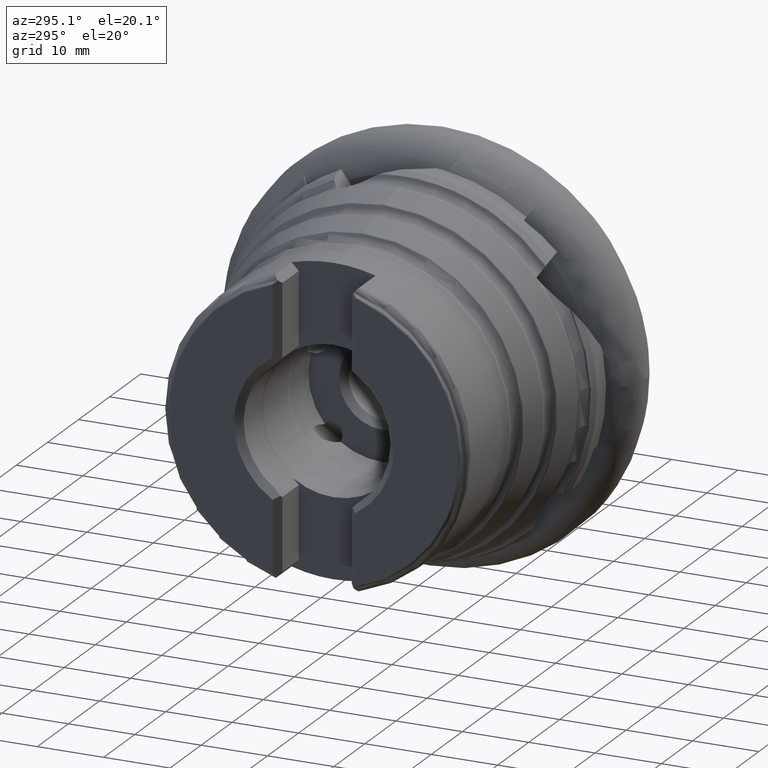
[diagram: clean part render]
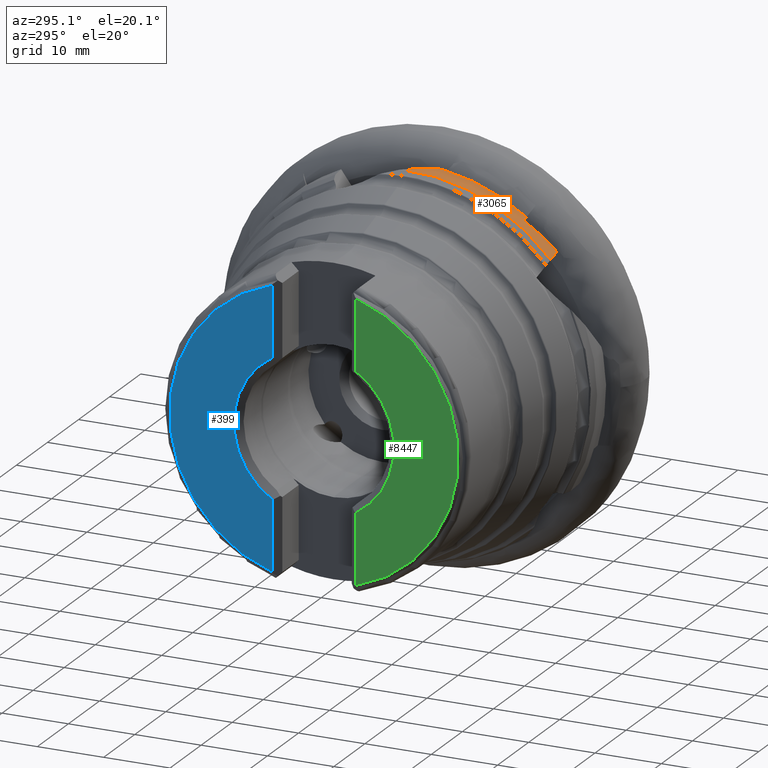
[diagram: same view with three faces highlighted in distinct colors, each labeled with its STEP entity id]
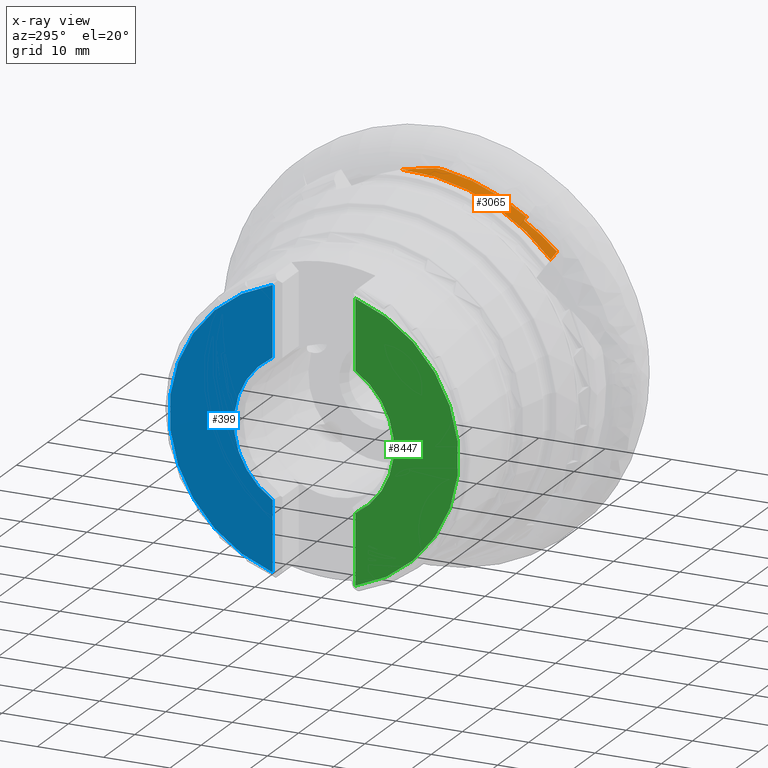
[diagram: x-ray of the same camera — body ghosted, the three highlighted faces saturated]
A machine part, auxiliary view with three faces highlighted in distinct colors.
The next image is the same camera in x-ray (body ghosted, the three faces saturated) — at least one of them is partly hidden behind the body in this view.
Their STEP definitions:

[orange] entity #3065 — the highlighted cylindrical surface (partial cylindrical patch) has radius 28.3 mm, axis along (1, -0, -0).
#5 = EDGE_LOOP ( 'NONE', ( #7452, #4567, #2580, #2568, #2128, #1456, #468 ) ) ;
#65 = EDGE_CURVE ( 'NONE', #8961, #3126, #7473, .T. ) ;
#251 = AXIS2_PLACEMENT_3D ( 'NONE', #6031, #4601, #3244 ) ;
#468 = ORIENTED_EDGE ( 'NONE', *, *, #65, .F. ) ;
#830 = AXIS2_PLACEMENT_3D ( 'NONE', #7430, #6723, #3947 ) ;
#899 = CARTESIAN_POINT ( 'NONE',  ( -10.09999999999999100, -3.750121680122614700, 28.05042936185245800 ) ) ;
#1244 = B_SPLINE_CURVE_WITH_KNOTS ( 'NONE', 3,
 ( #4107, #7675, #1348, #2754, #6420, #899 ),
 .UNSPECIFIED., .F., .F.,
 ( 4, 2, 4 ),
 ( 0.004349432963416596800, 0.004862400796637180100, 0.005375368629857763300 ),
 .UNSPECIFIED. ) ;
#1348 = CARTESIAN_POINT ( 'NONE',  ( -10.20462185407755000, -3.085377230602033700, 28.13181020584272200 ) ) ;
#1380 = CARTESIAN_POINT ( 'NONE',  ( -12.14301125521765100, -0.05080109255604209300, 28.33221288358772600 ) ) ;
#1411 = CARTESIAN_POINT ( 'NONE',  ( -10.38090222836437900, -21.03710874407310200, 18.92960791168276600 ) ) ;
#1456 = ORIENTED_EDGE ( 'NONE', *, *, #6855, .T. ) ;
#1557 = EDGE_CURVE ( 'NONE', #2565, #5980, #8249, .T. ) ;
#1942 = CARTESIAN_POINT ( 'NONE',  ( -10.38090222836437900, -21.03710874407310200, 18.92960791168276600 ) ) ;
#1962 = CARTESIAN_POINT ( 'NONE',  ( -12.99999999999999800, -21.28733053869701000, 18.64777623568713200 ) ) ;
#2030 = CARTESIAN_POINT ( 'NONE',  ( -10.86250496123011400, -16.39037683216616200, 23.07050972065726000 ) ) ;
#2128 = ORIENTED_EDGE ( 'NONE', *, *, #7425, .T. ) ;
#2150 = CARTESIAN_POINT ( 'NONE',  ( -11.24377545431678400, -16.43400197083565900, 23.03939190218720500 ) ) ;
#2469 = CARTESIAN_POINT ( 'NONE',  ( -11.24377545431678400, -16.43400197083565900, 23.03939190218720500 ) ) ;
#2565 = VERTEX_POINT ( 'NONE', #2469 ) ;
#2568 = ORIENTED_EDGE ( 'NONE', *, *, #6300, .F. ) ;
#2580 = ORIENTED_EDGE ( 'NONE', *, *, #3815, .F. ) ;
#2685 = FACE_OUTER_BOUND ( 'NONE', #5, .T. ) ;
#2754 = CARTESIAN_POINT ( 'NONE',  ( -10.15914175169515100, -3.419588743704182300, 28.09314348620684100 ) ) ;
#2765 = CARTESIAN_POINT ( 'NONE',  ( -10.09999999999999800, -16.30286228860670400, 23.13237301270074300 ) ) ;
#2830 = CARTESIAN_POINT ( 'NONE',  ( -10.23525451434899800, -2.747206377128795600, 28.16634262948371900 ) ) ;
#3060 = AXIS2_PLACEMENT_3D ( 'NONE', #8354, #3428, #4085 ) ;
#3065 = ADVANCED_FACE ( 'NONE', ( #2685 ), #5868, .T. ) ;
#3126 = VERTEX_POINT ( 'NONE', #1962 ) ;
#3244 = DIRECTION ( 'NONE',  ( 0.0000000000000000000, 0.0000000000000000000, -1.000000000000000000 ) ) ;
#3428 = DIRECTION ( 'NONE',  ( 1.000000000000000000, -0.0000000000000000000, -0.0000000000000000000 ) ) ;
#3475 = CARTESIAN_POINT ( 'NONE',  ( -10.95354942108211000, -18.11526217488523500, 21.84014872666680800 ) ) ;
#3507 = CARTESIAN_POINT ( 'NONE',  ( -10.66477743534509100, -19.65575299495921200, 20.46475492814183300 ) ) ;
#3580 = CARTESIAN_POINT ( 'NONE',  ( -12.99999999999999600, 1.299390108336942400, 28.27015361377359100 ) ) ;
#3678 = CARTESIAN_POINT ( 'NONE',  ( -12.12825200801737700, -21.20454944293071300, 18.74227482499133000 ) ) ;
#3815 = EDGE_CURVE ( 'NONE', #5206, #5980, #6507, .T. ) ;
#3927 = CARTESIAN_POINT ( 'NONE',  ( -10.38090222836437900, -21.03710874407310200, 18.92960791168276600 ) ) ;
#3947 = DIRECTION ( 'NONE',  ( 0.0000000000000000000, 0.0000000000000000000, -1.000000000000000000 ) ) ;
#4085 = DIRECTION ( 'NONE',  ( 0.0000000000000000000, 0.0000000000000000000, -1.000000000000000000 ) ) ;
#4107 = CARTESIAN_POINT ( 'NONE',  ( -10.23525451434899800, -2.747206377128795600, 28.16634262948371900 ) ) ;
#4567 = ORIENTED_EDGE ( 'NONE', *, *, #1557, .T. ) ;
#4601 = DIRECTION ( 'NONE',  ( 1.000000000000000000, -0.0000000000000000000, -0.0000000000000000000 ) ) ;
#5104 = CARTESIAN_POINT ( 'NONE',  ( -10.09999999999999100, -3.750121680122614700, 28.05042936185245800 ) ) ;
#5206 = VERTEX_POINT ( 'NONE', #5104 ) ;
#5470 = CARTESIAN_POINT ( 'NONE',  ( -10.48124545124958500, -16.34666348721116000, 23.10150350750417700 ) ) ;
#5476 =( BOUNDED_CURVE ( )  B_SPLINE_CURVE ( 3, ( #2150, #3475, #3507, #1411 ),
 .UNSPECIFIED., .F., .F. ) 
 B_SPLINE_CURVE_WITH_KNOTS ( ( 4, 4 ),
 ( 4.703667035812809900, 4.922151217204736400 ),
 .UNSPECIFIED. ) 
 CURVE ( )  GEOMETRIC_REPRESENTATION_ITEM ( )  RATIONAL_B_SPLINE_CURVE ( ( 1.000000000000000000, 0.9960260096446420500, 0.9960260096446420500, 1.000000000000000000 ) ) 
 REPRESENTATION_ITEM ( '' )  );
#5868 = CYLINDRICAL_SURFACE ( 'NONE', #251, 28.30000000000000100 ) ;
#5980 = VERTEX_POINT ( 'NONE', #6242 ) ;
#6031 = CARTESIAN_POINT ( 'NONE',  ( 0.0000000000000000000, 0.0000000000000000000, 0.0000000000000000000 ) ) ;
#6242 = CARTESIAN_POINT ( 'NONE',  ( -10.09999999999999800, -16.30286228860670400, 23.13237301270074300 ) ) ;
#6300 = EDGE_CURVE ( 'NONE', #6791, #5206, #1244, .T. ) ;
#6341 = VERTEX_POINT ( 'NONE', #3580 ) ;
#6420 = CARTESIAN_POINT ( 'NONE',  ( -10.13169038464091000, -3.585430710667140400, 28.07244724853461900 ) ) ;
#6507 = CIRCLE ( 'NONE', #830, 28.30000000000000100 ) ;
#6723 = DIRECTION ( 'NONE',  ( 1.000000000000000000, -0.0000000000000000000, -0.0000000000000000000 ) ) ;
#6791 = VERTEX_POINT ( 'NONE', #6821 ) ;
#6821 = CARTESIAN_POINT ( 'NONE',  ( -10.23525451434899800, -2.747206377128795600, 28.16634262948371900 ) ) ;
#6855 = EDGE_CURVE ( 'NONE', #6341, #3126, #7796, .T. ) ;
#7336 =( BOUNDED_CURVE ( )  B_SPLINE_CURVE ( 3, ( #2830, #7676, #1380, #8308 ),
 .UNSPECIFIED., .F., .F. ) 
 B_SPLINE_CURVE_WITH_KNOTS ( ( 4, 4 ),
 ( 2.267537012294808200, 2.410695548230669800 ),
 .UNSPECIFIED. ) 
 CURVE ( )  GEOMETRIC_REPRESENTATION_ITEM ( )  RATIONAL_B_SPLINE_CURVE ( ( 1.000000000000000000, 0.9982928652076132900, 0.9982928652076132900, 1.000000000000000000 ) ) 
 REPRESENTATION_ITEM ( '' )  );
#7425 = EDGE_CURVE ( 'NONE', #6791, #6341, #7336, .T. ) ;
#7430 = CARTESIAN_POINT ( 'NONE',  ( -10.09999999999999800, 0.0000000000000000000, 0.0000000000000000000 ) ) ;
#7452 = ORIENTED_EDGE ( 'NONE', *, *, #8607, .F. ) ;
#7473 =( BOUNDED_CURVE ( )  B_SPLINE_CURVE ( 3, ( #3927, #8763, #3678, #7859 ),
 .UNSPECIFIED., .F., .F. ) 
 B_SPLINE_CURVE_WITH_KNOTS ( ( 4, 4 ),
 ( 1.780558563614943500, 1.793876047101828500 ),
 .UNSPECIFIED. ) 
 CURVE ( )  GEOMETRIC_REPRESENTATION_ITEM ( )  RATIONAL_B_SPLINE_CURVE ( ( 1.000000000000000000, 0.9999852204407405600, 0.9999852204407405600, 1.000000000000000000 ) ) 
 REPRESENTATION_ITEM ( '' )  );
#7556 = CARTESIAN_POINT ( 'NONE',  ( -11.24377545431678400, -16.43400197083565900, 23.03939190218720500 ) ) ;
#7675 = CARTESIAN_POINT ( 'NONE',  ( -10.22265747837393800, -2.917009271668783700, 28.14978089121062500 ) ) ;
#7676 = CARTESIAN_POINT ( 'NONE',  ( -11.21985347189651500, -1.401973220661679300, 28.29755004802511900 ) ) ;
#7796 = CIRCLE ( 'NONE', #3060, 28.30000000000000100 ) ;
#7859 = CARTESIAN_POINT ( 'NONE',  ( -12.99999999999999800, -21.28733053869701000, 18.64777623568713200 ) ) ;
#8249 =( BOUNDED_CURVE ( )  B_SPLINE_CURVE ( 3, ( #7556, #2030, #5470, #2765 ),
 .UNSPECIFIED., .F., .T. ) 
 B_SPLINE_CURVE_WITH_KNOTS ( ( 4, 4 ),
 ( 4.721110924956569500, 4.726791423843071300 ),
 .UNSPECIFIED. ) 
 CURVE ( )  GEOMETRIC_REPRESENTATION_ITEM ( )  RATIONAL_B_SPLINE_CURVE ( ( 1.000000000000000000, 0.9999973109961743900, 0.9999973109961743900, 1.000000000000000000 ) ) 
 REPRESENTATION_ITEM ( '' )  );
#8308 = CARTESIAN_POINT ( 'NONE',  ( -12.99999999999999600, 1.299390108336942400, 28.27015361377359100 ) ) ;
#8354 = CARTESIAN_POINT ( 'NONE',  ( -13.00000000000000000, 0.0000000000000000000, 0.0000000000000000000 ) ) ;
#8607 = EDGE_CURVE ( 'NONE', #2565, #8961, #5476, .T. ) ;
#8763 = CARTESIAN_POINT ( 'NONE',  ( -11.25520651424457000, -21.12114094531524000, 18.83622010545971300 ) ) ;
#8961 = VERTEX_POINT ( 'NONE', #1942 ) ;

[blue] entity #399 — the highlighted planar face has unit normal (-1, 0, 0).
#37 = VERTEX_POINT ( 'NONE', #5295 ) ;
#94 = LINE ( 'NONE', #3736, #6731 ) ;
#399 = ADVANCED_FACE ( 'NONE', ( #5896 ), #4945, .T. ) ;
#745 = CARTESIAN_POINT ( 'NONE',  ( -43.70000000000000300, 6.230000000000006600, 20.88040229497505600 ) ) ;
#797 = DIRECTION ( 'NONE',  ( -1.000000000000000000, 0.0000000000000000000, 0.0000000000000000000 ) ) ;
#975 = CIRCLE ( 'NONE', #5330, 12.07500000000000500 ) ;
#1712 = VERTEX_POINT ( 'NONE', #745 ) ;
#1780 = DIRECTION ( 'NONE',  ( 0.0000000000000000000, -0.0000000000000000000, 1.000000000000000000 ) ) ;
#1839 = DIRECTION ( 'NONE',  ( 1.000000000000000000, -0.0000000000000000000, -0.0000000000000000000 ) ) ;
#2618 = CARTESIAN_POINT ( 'NONE',  ( -43.70000000000000300, 0.0000000000000000000, 0.0000000000000000000 ) ) ;
#2733 = EDGE_CURVE ( 'NONE', #3110, #1712, #8675, .T. ) ;
#2943 = CARTESIAN_POINT ( 'NONE',  ( -43.70000000000000300, 21.78999999999999200, 0.0000000000000000000 ) ) ;
#3000 = ORIENTED_EDGE ( 'NONE', *, *, #6653, .T. ) ;
#3110 = VERTEX_POINT ( 'NONE', #6835 ) ;
#3469 = EDGE_CURVE ( 'NONE', #37, #1712, #94, .T. ) ;
#3505 = VERTEX_POINT ( 'NONE', #5998 ) ;
#3736 = CARTESIAN_POINT ( 'NONE',  ( -43.70000000000000300, 6.230000000000006600, 21.00735931288070900 ) ) ;
#4186 = ORIENTED_EDGE ( 'NONE', *, *, #5317, .T. ) ;
#4448 = AXIS2_PLACEMENT_3D ( 'NONE', #2618, #4691, #8917 ) ;
#4575 = LINE ( 'NONE', #4804, #5880 ) ;
#4596 = AXIS2_PLACEMENT_3D ( 'NONE', #2943, #797, #8423 ) ;
#4691 = DIRECTION ( 'NONE',  ( 1.000000000000000000, -0.0000000000000000000, -0.0000000000000000000 ) ) ;
#4804 = CARTESIAN_POINT ( 'NONE',  ( -43.70000000000000300, 6.229999999999932900, -10.88359889926126400 ) ) ;
#4945 = PLANE ( 'NONE',  #4596 ) ;
#5295 = CARTESIAN_POINT ( 'NONE',  ( -43.70000000000000300, 6.230000000000006600, 10.34372877641327200 ) ) ;
#5317 = EDGE_CURVE ( 'NONE', #3110, #3505, #4575, .T. ) ;
#5330 = AXIS2_PLACEMENT_3D ( 'NONE', #7403, #1839, #7295 ) ;
#5552 = ORIENTED_EDGE ( 'NONE', *, *, #3469, .T. ) ;
#5880 = VECTOR ( 'NONE', #7522, 1000.000000000000000 ) ;
#5896 = FACE_OUTER_BOUND ( 'NONE', #8954, .T. ) ;
#5961 = ORIENTED_EDGE ( 'NONE', *, *, #2733, .F. ) ;
#5998 = CARTESIAN_POINT ( 'NONE',  ( -43.70000000000000300, 6.229999999999938300, -10.34372877641331500 ) ) ;
#6653 = EDGE_CURVE ( 'NONE', #3505, #37, #975, .T. ) ;
#6731 = VECTOR ( 'NONE', #1780, 1000.000000000000000 ) ;
#6835 = CARTESIAN_POINT ( 'NONE',  ( -43.70000000000000300, 6.229999999999863600, -20.88040229497509900 ) ) ;
#7295 = DIRECTION ( 'NONE',  ( 0.0000000000000000000, 0.0000000000000000000, -1.000000000000000000 ) ) ;
#7403 = CARTESIAN_POINT ( 'NONE',  ( -43.70000000000000300, 0.0000000000000000000, 0.0000000000000000000 ) ) ;
#7522 = DIRECTION ( 'NONE',  ( 0.0000000000000000000, 6.982962677686266700E-015, 1.000000000000000000 ) ) ;
#8423 = DIRECTION ( 'NONE',  ( 0.0000000000000000000, 0.0000000000000000000, 1.000000000000000000 ) ) ;
#8675 = CIRCLE ( 'NONE', #4448, 21.78999999999999200 ) ;
#8917 = DIRECTION ( 'NONE',  ( 0.0000000000000000000, 0.0000000000000000000, -1.000000000000000000 ) ) ;
#8954 = EDGE_LOOP ( 'NONE', ( #5961, #4186, #3000, #5552 ) ) ;

[green] entity #8447 — the highlighted planar face has unit normal (-1, 0, 0).
#6 = VECTOR ( 'NONE', #3376, 1000.000000000000000 ) ;
#124 = EDGE_CURVE ( 'NONE', #5701, #3694, #3468, .T. ) ;
#667 = CARTESIAN_POINT ( 'NONE',  ( -43.70000000000000300, -6.230000000000156700, -21.00735931288066600 ) ) ;
#959 = EDGE_CURVE ( 'NONE', #5701, #2116, #3343, .T. ) ;
#1000 = AXIS2_PLACEMENT_3D ( 'NONE', #8478, #7873, #5124 ) ;
#1250 = EDGE_CURVE ( 'NONE', #2536, #2116, #7488, .T. ) ;
#1614 = ORIENTED_EDGE ( 'NONE', *, *, #959, .F. ) ;
#1818 = CARTESIAN_POINT ( 'NONE',  ( -43.70000000000000300, -6.230000000000006600, 10.88359889926122100 ) ) ;
#2068 = ORIENTED_EDGE ( 'NONE', *, *, #124, .T. ) ;
#2116 = VERTEX_POINT ( 'NONE', #7005 ) ;
#2536 = VERTEX_POINT ( 'NONE', #5820 ) ;
#2706 = VECTOR ( 'NONE', #7412, 1000.000000000000000 ) ;
#2710 = CARTESIAN_POINT ( 'NONE',  ( -43.70000000000000300, -6.230000000000006600, 20.88040229497505600 ) ) ;
#2889 = ORIENTED_EDGE ( 'NONE', *, *, #1250, .T. ) ;
#3343 = CIRCLE ( 'NONE', #1000, 21.78999999999999200 ) ;
#3376 = DIRECTION ( 'NONE',  ( 0.0000000000000000000, -6.982962677686266700E-015, -1.000000000000000000 ) ) ;
#3468 = LINE ( 'NONE', #1818, #2706 ) ;
#3694 = VERTEX_POINT ( 'NONE', #4087 ) ;
#3937 = AXIS2_PLACEMENT_3D ( 'NONE', #6187, #8219, #7515 ) ;
#4087 = CARTESIAN_POINT ( 'NONE',  ( -43.70000000000000300, -6.230000000000005800, 10.34372877641327200 ) ) ;
#4250 = ORIENTED_EDGE ( 'NONE', *, *, #7779, .T. ) ;
#4737 = PLANE ( 'NONE',  #3937 ) ;
#5124 = DIRECTION ( 'NONE',  ( 0.0000000000000000000, 0.0000000000000000000, -1.000000000000000000 ) ) ;
#5294 = FACE_OUTER_BOUND ( 'NONE', #8712, .T. ) ;
#5344 = DIRECTION ( 'NONE',  ( 0.0000000000000000000, 0.0000000000000000000, -1.000000000000000000 ) ) ;
#5701 = VERTEX_POINT ( 'NONE', #2710 ) ;
#5820 = CARTESIAN_POINT ( 'NONE',  ( -43.70000000000000300, -6.230000000000082100, -10.34372877641322800 ) ) ;
#6187 = CARTESIAN_POINT ( 'NONE',  ( -43.70000000000000300, 21.78999999999999200, 0.0000000000000000000 ) ) ;
#6741 = AXIS2_PLACEMENT_3D ( 'NONE', #8728, #8782, #5344 ) ;
#7005 = CARTESIAN_POINT ( 'NONE',  ( -43.70000000000000300, -6.230000000000155000, -20.88040229497501000 ) ) ;
#7412 = DIRECTION ( 'NONE',  ( 0.0000000000000000000, 0.0000000000000000000, -1.000000000000000000 ) ) ;
#7488 = LINE ( 'NONE', #667, #6 ) ;
#7515 = DIRECTION ( 'NONE',  ( 0.0000000000000000000, 0.0000000000000000000, 1.000000000000000000 ) ) ;
#7779 = EDGE_CURVE ( 'NONE', #3694, #2536, #8001, .T. ) ;
#7873 = DIRECTION ( 'NONE',  ( 1.000000000000000000, -0.0000000000000000000, -0.0000000000000000000 ) ) ;
#8001 = CIRCLE ( 'NONE', #6741, 12.07500000000000500 ) ;
#8219 = DIRECTION ( 'NONE',  ( -1.000000000000000000, 0.0000000000000000000, 0.0000000000000000000 ) ) ;
#8447 = ADVANCED_FACE ( 'NONE', ( #5294 ), #4737, .T. ) ;
#8478 = CARTESIAN_POINT ( 'NONE',  ( -43.70000000000000300, 0.0000000000000000000, 0.0000000000000000000 ) ) ;
#8712 = EDGE_LOOP ( 'NONE', ( #4250, #2889, #1614, #2068 ) ) ;
#8728 = CARTESIAN_POINT ( 'NONE',  ( -43.70000000000000300, 0.0000000000000000000, 0.0000000000000000000 ) ) ;
#8782 = DIRECTION ( 'NONE',  ( 1.000000000000000000, -0.0000000000000000000, -0.0000000000000000000 ) ) ;